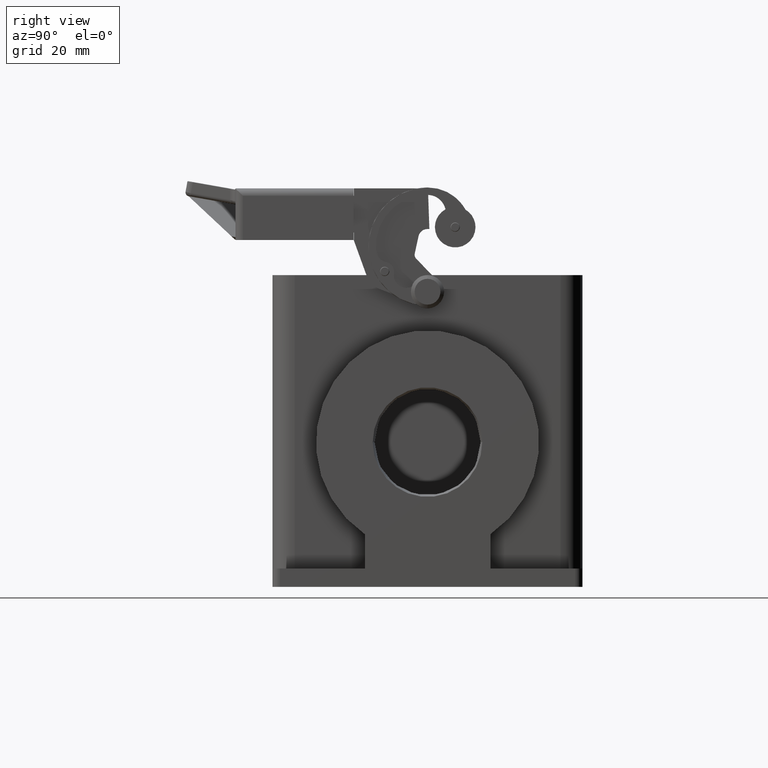
[diagram: clean part render]
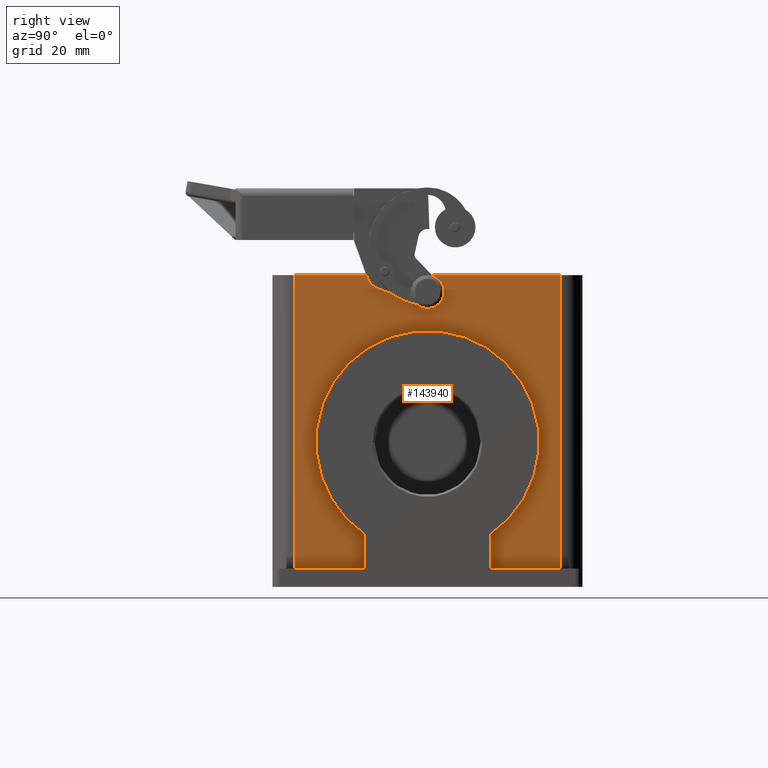
[diagram: same view with one face highlighted and labeled with its STEP entity id]
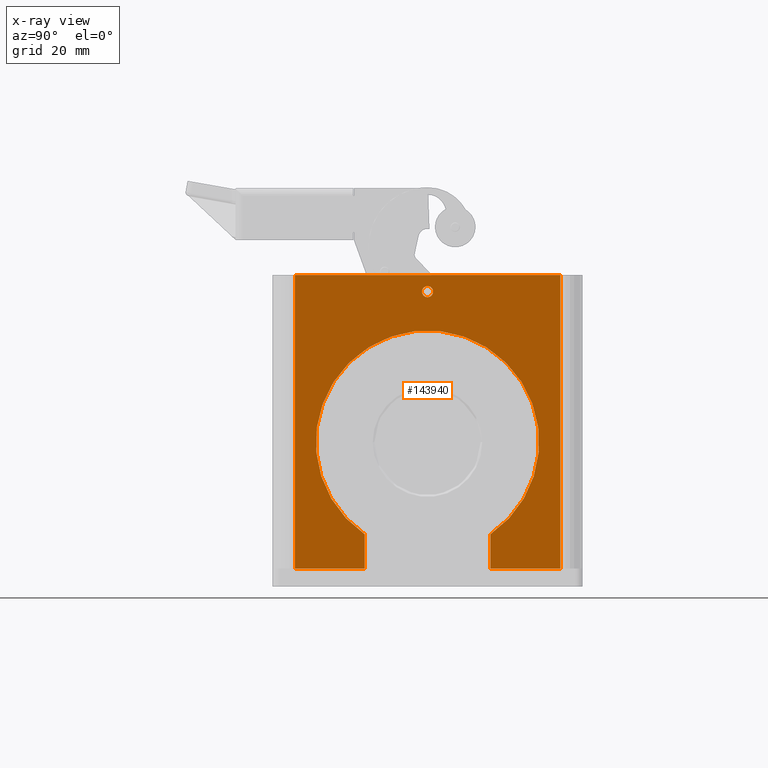
[diagram: x-ray of the same camera — body ghosted, the highlighted face saturated]
A machine part, right view. The second image highlights one B-rep face of the part: STEP entity #143940.
The next image is the same camera in x-ray: the body ghosted, the highlighted face saturated — about 0% of this face is hidden behind the body in this view.
In plain terms, the highlighted planar face has unit normal (1, 0, 0).
Its self-contained STEP definition (entity closure, byte-faithful):
#42700=CARTESIAN_POINT('',(47.,36.,-50.));
#42710=DIRECTION('',(0.,0.,1.));
#42720=VECTOR('',#42710,1.);
#42730=LINE('',#42700,#42720);
#42740=CARTESIAN_POINT('',(47.,36.,-50.));
#42750=VERTEX_POINT('',#42740);
#42760=CARTESIAN_POINT('',(47.,36.,29.5));
#42770=VERTEX_POINT('',#42760);
#42780=EDGE_CURVE('',#42750,#42770,#42730,.T.);
#104660=CARTESIAN_POINT('',(47.,0.,29.5));
#104670=DIRECTION('',(0.,-1.,0.));
#104680=VECTOR('',#104670,1.);
#104690=LINE('',#104660,#104680);
#104700=CARTESIAN_POINT('',(47.,-36.,29.5));
#104710=VERTEX_POINT('',#104700);
#104720=EDGE_CURVE('',#42770,#104710,#104690,.T.);
#131160=CARTESIAN_POINT('',(47.,-1.5,25.));
#131170=VERTEX_POINT('',#131160);
#131200=CARTESIAN_POINT('',(47.,3.33066907387546E-16,25.));
#131210=DIRECTION('',(-1.,-0.,-0.));
#131220=DIRECTION('',(0.,-1.,0.));
#131230=AXIS2_PLACEMENT_3D('',#131200,#131210,#131220);
#131240=CIRCLE('',#131230,1.5);
#131250=CARTESIAN_POINT('',(47.,-9.18485099360515E-17,26.5));
#131260=VERTEX_POINT('',#131250);
#131270=EDGE_CURVE('',#131170,#131260,#131240,.T.);
#131290=CARTESIAN_POINT('',(47.,1.5,25.));
#131300=VERTEX_POINT('',#131290);
#131310=EDGE_CURVE('',#131260,#131300,#131240,.T.);
#140380=CARTESIAN_POINT('',(47.,17.,-40.7812409764185));
#140390=VERTEX_POINT('',#140380);
#140420=CARTESIAN_POINT('',(47.,17.,0.));
#140430=DIRECTION('',(0.,0.,-1.));
#140440=VECTOR('',#140430,1.);
#140450=LINE('',#140420,#140440);
#140460=CARTESIAN_POINT('',(47.,17.,-50.));
#140470=VERTEX_POINT('',#140460);
#140480=EDGE_CURVE('',#140390,#140470,#140450,.T.);
#142490=CARTESIAN_POINT('',(47.,-17.,-40.7812409764184));
#142500=VERTEX_POINT('',#142490);
#142530=CARTESIAN_POINT('',(47.,2.44249065417534E-15,-15.7600000000001))
;
#142540=DIRECTION('',(1.,0.,0.));
#142550=DIRECTION('',(0.,1.,0.));
#142560=AXIS2_PLACEMENT_3D('',#142530,#142540,#142550);
#142570=CIRCLE('',#142560,30.25);
#142580=EDGE_CURVE('',#140390,#142500,#142570,.T.);
#142750=CARTESIAN_POINT('',(47.,-17.,0.));
#142760=DIRECTION('',(-0.,0.,1.));
#142770=VECTOR('',#142760,1.);
#142780=LINE('',#142750,#142770);
#142790=CARTESIAN_POINT('',(47.,-17.,-50.));
#142800=VERTEX_POINT('',#142790);
#142810=EDGE_CURVE('',#142800,#142500,#142780,.T.);
#143560=CARTESIAN_POINT('',(47.,-63.4120505682302,37.45));
#143570=DIRECTION('',(1.,0.,0.));
#143580=DIRECTION('',(0.,-1.,0.));
#143590=AXIS2_PLACEMENT_3D('',#143560,#143570,#143580);
#143600=PLANE('',#143590);
#143610=ORIENTED_EDGE('',*,*,#142580,.F.);
#143620=ORIENTED_EDGE('',*,*,#142810,.T.);
#143630=CARTESIAN_POINT('',(47.,0.,-50.));
#143640=DIRECTION('',(0.,-1.,0.));
#143650=VECTOR('',#143640,1.);
#143660=LINE('',#143630,#143650);
#143670=CARTESIAN_POINT('',(47.,-36.,-50.));
#143680=VERTEX_POINT('',#143670);
#143690=EDGE_CURVE('',#142800,#143680,#143660,.T.);
#143700=ORIENTED_EDGE('',*,*,#143690,.F.);
#143710=CARTESIAN_POINT('',(47.,-36.,-50.));
#143720=DIRECTION('',(0.,0.,1.));
#143730=VECTOR('',#143720,1.);
#143740=LINE('',#143710,#143730);
#143750=EDGE_CURVE('',#143680,#104710,#143740,.T.);
#143760=ORIENTED_EDGE('',*,*,#143750,.F.);
#143770=ORIENTED_EDGE('',*,*,#104720,.T.);
#143780=ORIENTED_EDGE('',*,*,#42780,.T.);
#143790=CARTESIAN_POINT('',(47.,0.,-50.));
#143800=DIRECTION('',(0.,-1.,0.));
#143810=VECTOR('',#143800,1.);
#143820=LINE('',#143790,#143810);
#143830=EDGE_CURVE('',#42750,#140470,#143820,.T.);
#143840=ORIENTED_EDGE('',*,*,#143830,.F.);
#143850=ORIENTED_EDGE('',*,*,#140480,.T.);
#143860=EDGE_LOOP('',(#143850,#143840,#143780,#143770,#143760,#143700,
#143620,#143610));
#143870=FACE_OUTER_BOUND('',#143860,.T.);
#143880=EDGE_CURVE('',#131300,#131170,#131240,.T.);
#143890=ORIENTED_EDGE('',*,*,#143880,.T.);
#143900=ORIENTED_EDGE('',*,*,#131310,.T.);
#143910=ORIENTED_EDGE('',*,*,#131270,.T.);
#143920=EDGE_LOOP('',(#143910,#143900,#143890));
#143930=FACE_BOUND('',#143920,.T.);
#143940=ADVANCED_FACE('',(#143870,#143930),#143600,.T.);